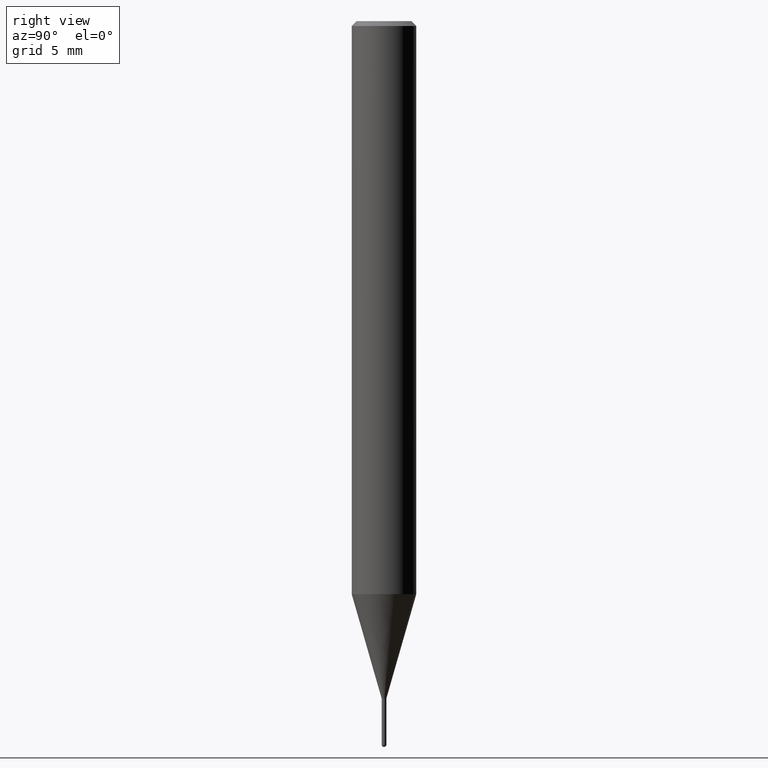
[diagram: clean part render]
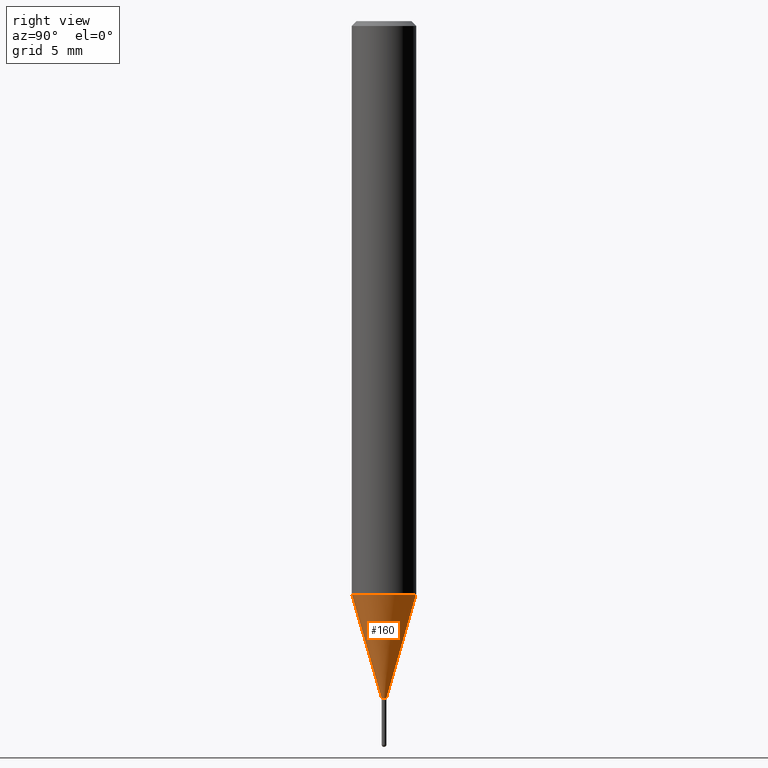
[diagram: same view with one face highlighted and labeled with its STEP entity id]
A machine part, right view. The second image highlights one B-rep face of the part: STEP entity #160.
In plain terms, the highlighted conical surface has half-angle 16 deg.
Its self-contained STEP definition (entity closure, byte-faithful):
#98=EDGE_CURVE('',#182,#186,#241,.T.);
#108=EDGE_CURVE('',#204,#130,#253,.T.);
#130=VERTEX_POINT('',#277);
#160=ADVANCED_FACE('',(#311),#312,.T.);
#180=EDGE_CURVE('',#186,#130,#334,.T.);
#182=VERTEX_POINT('',#336);
#186=VERTEX_POINT('',#340);
#198=EDGE_CURVE('',#204,#182,#353,.T.);
#204=VERTEX_POINT('',#360);
#241=CIRCLE('',#392,0.14495);
#253=CIRCLE('',#405,1.99995);
#277=CARTESIAN_POINT('',(2.44915147732706E-016,-1.99995,-35.531));
#311=FACE_OUTER_BOUND('',#479,.T.);
#312=CONICAL_SURFACE('',#480,1.07245,0.279258979430112);
#334=LINE('',#508,#509);
#336=CARTESIAN_POINT('',(0.0,0.14495,-42.0));
#340=CARTESIAN_POINT('',(1.77506690986554E-017,-0.14495,-42.0));
#353=LINE('',#534,#535);
#360=CARTESIAN_POINT('',(0.0,1.99995,-35.531));
#392=AXIS2_PLACEMENT_3D('',#573,#574,#575);
#405=AXIS2_PLACEMENT_3D('',#592,#593,#594);
#479=EDGE_LOOP('',(#661,#662,#663,#664));
#480=AXIS2_PLACEMENT_3D('',#665,#666,#667);
#508=CARTESIAN_POINT('',(1.31332908415681E-016,-1.07245,-38.7655));
#509=VECTOR('',#691,1.0);
#534=CARTESIAN_POINT('',(-1.31332908415681E-016,1.07245,-38.7655));
#535=VECTOR('',#710,1.0);
#573=CARTESIAN_POINT('',(0.0,0.0,-42.0));
#574=DIRECTION('',(0.0,0.0,-1.0));
#575=DIRECTION('',(0.0,1.0,0.0));
#592=CARTESIAN_POINT('',(0.0,0.0,-35.531));
#593=DIRECTION('',(0.0,0.0,-1.0));
#594=DIRECTION('',(0.0,1.0,0.0));
#661=ORIENTED_EDGE('',*,*,#198,.F.);
#662=ORIENTED_EDGE('',*,*,#108,.T.);
#663=ORIENTED_EDGE('',*,*,#180,.F.);
#664=ORIENTED_EDGE('',*,*,#98,.F.);
#665=CARTESIAN_POINT('',(0.0,0.0,-38.7655));
#666=DIRECTION('',(-0.0,-0.0,1.0));
#667=DIRECTION('',(0.0,1.0,0.0));
#691=DIRECTION('',(3.37554672384358E-017,-0.275643410905672,0.961259959648943));
#710=DIRECTION('',(3.37554672384358E-017,-0.275643410905672,-0.961259959648943));